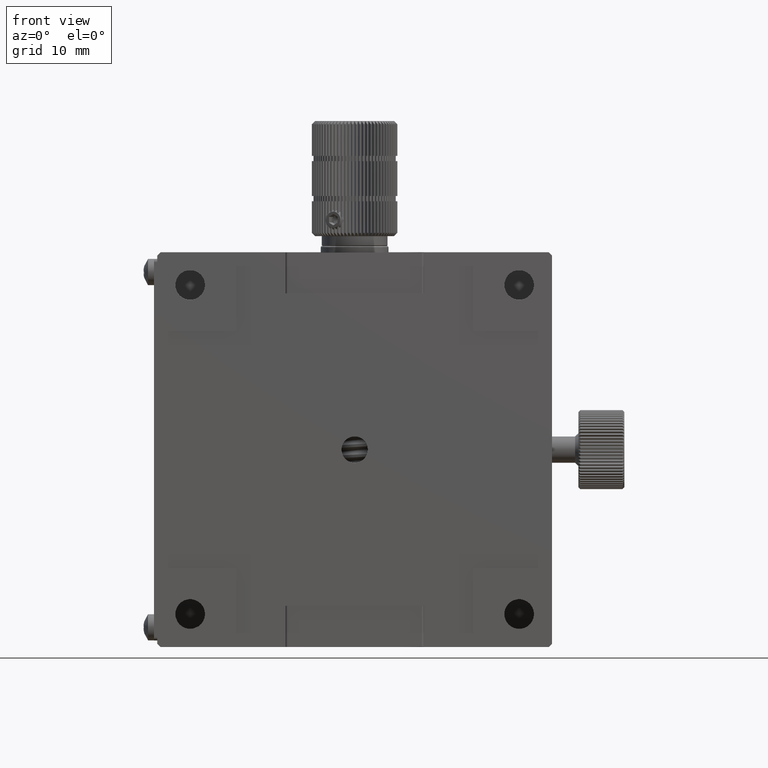
[diagram: clean part render]
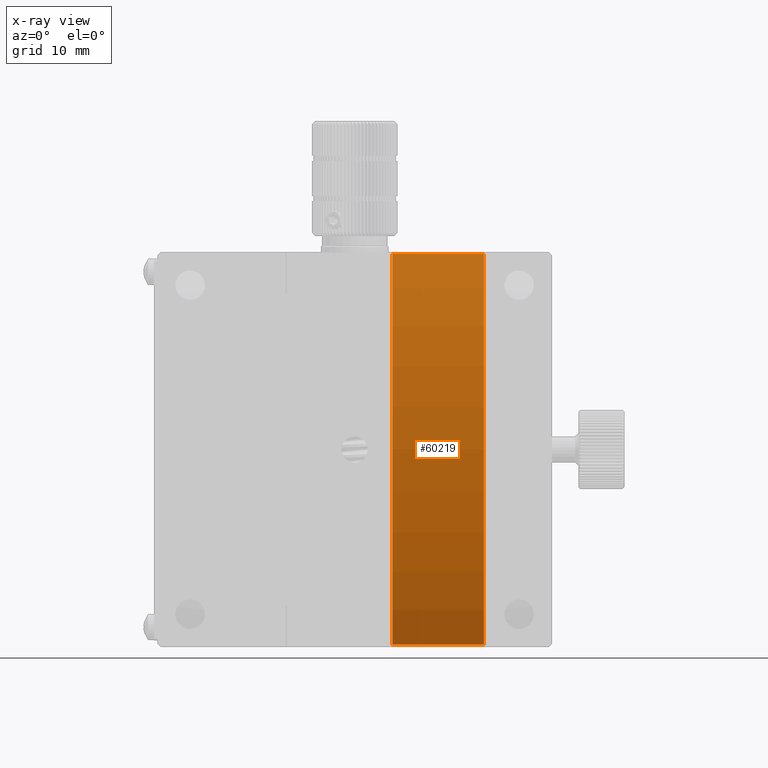
[diagram: x-ray — body ghosted, one internal face saturated and labeled with its STEP entity id]
A machine part, front view, then the same camera in x-ray: the body is ghosted and one INTERNAL B-rep face — a face not visible from any outside direction — is saturated and labeled: STEP entity #60219.
In plain terms, the highlighted cylindrical surface (partial cylindrical patch) has radius 47.55 mm, axis along (-1, 0, 0).
Its self-contained STEP definition (entity closure, byte-faithful):
#8180 = CARTESIAN_POINT ( 'NONE',  ( 69.70471066823355955, 59.22150794096296522, 79.95234451444424906 ) ) ;
#9277 = VECTOR ( 'NONE', #69292, 1000.000000000000000 ) ;
#17779 = CIRCLE ( 'NONE', #66099, 47.55000000000004690 ) ;
#19964 = ORIENTED_EDGE ( 'NONE', *, *, #49668, .F. ) ;
#21631 = CARTESIAN_POINT ( 'NONE',  ( 55.80815170115013046, 59.22150794096300785, 79.95234451444429169 ) ) ;
#21956 = DIRECTION ( 'NONE',  ( -1.000000000000000000, 3.491481338843177137E-15, 3.491481338843090757E-15 ) ) ;
#27891 = CARTESIAN_POINT ( 'NONE',  ( 69.70471066823336059, 59.12973344869171655, 20.62071036372776334 ) ) ;
#31224 = DIRECTION ( 'NONE',  ( -1.000000000000000000, 3.491481338843133355E-15, 3.491481338843133355E-15 ) ) ;
#32550 = EDGE_CURVE ( 'NONE', #71428, #33665, #72696, .T. ) ;
#32635 = EDGE_LOOP ( 'NONE', ( #19964, #59708, #74092, #59373 ) ) ;
#33597 = CARTESIAN_POINT ( 'NONE',  ( 50.05815170114991730, 59.12973344869178760, 20.62071036372777399 ) ) ;
#33665 = VERTEX_POINT ( 'NONE', #8180 ) ;
#33737 = CARTESIAN_POINT ( 'NONE',  ( 69.70471066823358797, 96.33657315266972887, 50.22904667704475656 ) ) ;
#36429 = EDGE_CURVE ( 'NONE', #63341, #37039, #17779, .T. ) ;
#37039 = VERTEX_POINT ( 'NONE', #21631 ) ;
#37879 = AXIS2_PLACEMENT_3D ( 'NONE', #33737, #38404, #50446 ) ;
#38404 = DIRECTION ( 'NONE',  ( -1.000000000000000000, 3.491481338843133355E-15, 3.491481338843133355E-15 ) ) ;
#39785 = CARTESIAN_POINT ( 'NONE',  ( 50.05815170115012336, 59.22150794096304338, 79.95234451444430590 ) ) ;
#42507 = CARTESIAN_POINT ( 'NONE',  ( 55.80815170115015889, 96.33657315266978571, 50.22904667704479920 ) ) ;
#44676 = DIRECTION ( 'NONE',  ( 3.502280834779669604E-15, 0.000000000000000000, 1.000000000000000000 ) ) ;
#45625 = LINE ( 'NONE', #33597, #9277 ) ;
#49668 = EDGE_CURVE ( 'NONE', #33665, #37039, #69656, .T. ) ;
#50446 = DIRECTION ( 'NONE',  ( 3.502280834779671576E-15, 1.000000000000000000, -1.459283681158196654E-16 ) ) ;
#56703 = CYLINDRICAL_SURFACE ( 'NONE', #58945, 47.55000000000005400 ) ;
#58517 = DIRECTION ( 'NONE',  ( -1.000000000000000000, 3.491481338843133355E-15, 3.491481338843133355E-15 ) ) ;
#58945 = AXIS2_PLACEMENT_3D ( 'NONE', #62134, #58517, #44676 ) ;
#59318 = EDGE_CURVE ( 'NONE', #63341, #71428, #45625, .T. ) ;
#59373 = ORIENTED_EDGE ( 'NONE', *, *, #36429, .T. ) ;
#59459 = CARTESIAN_POINT ( 'NONE',  ( 55.80815170114998836, 59.12973344869175918, 20.62071036372776689 ) ) ;
#59708 = ORIENTED_EDGE ( 'NONE', *, *, #32550, .F. ) ;
#60219 = ADVANCED_FACE ( 'NONE', ( #62916 ), #56703, .F. ) ;
#62134 = CARTESIAN_POINT ( 'NONE',  ( 50.05815170115015178, 96.33657315266979992, 50.22904667704482051 ) ) ;
#62916 = FACE_OUTER_BOUND ( 'NONE', #32635, .T. ) ;
#63341 = VERTEX_POINT ( 'NONE', #59459 ) ;
#66099 = AXIS2_PLACEMENT_3D ( 'NONE', #42507, #31224, #66931 ) ;
#66931 = DIRECTION ( 'NONE',  ( 3.502280834779669998E-15, 0.000000000000000000, 1.000000000000000000 ) ) ;
#69292 = DIRECTION ( 'NONE',  ( 1.000000000000000000, -3.098864651980265678E-15, 3.192717900007495484E-16 ) ) ;
#69443 = VECTOR ( 'NONE', #21956, 1000.000000000000000 ) ;
#69656 = LINE ( 'NONE', #39785, #69443 ) ;
#71428 = VERTEX_POINT ( 'NONE', #27891 ) ;
#72696 = CIRCLE ( 'NONE', #37879, 47.55000000000002558 ) ;
#74092 = ORIENTED_EDGE ( 'NONE', *, *, #59318, .F. ) ;